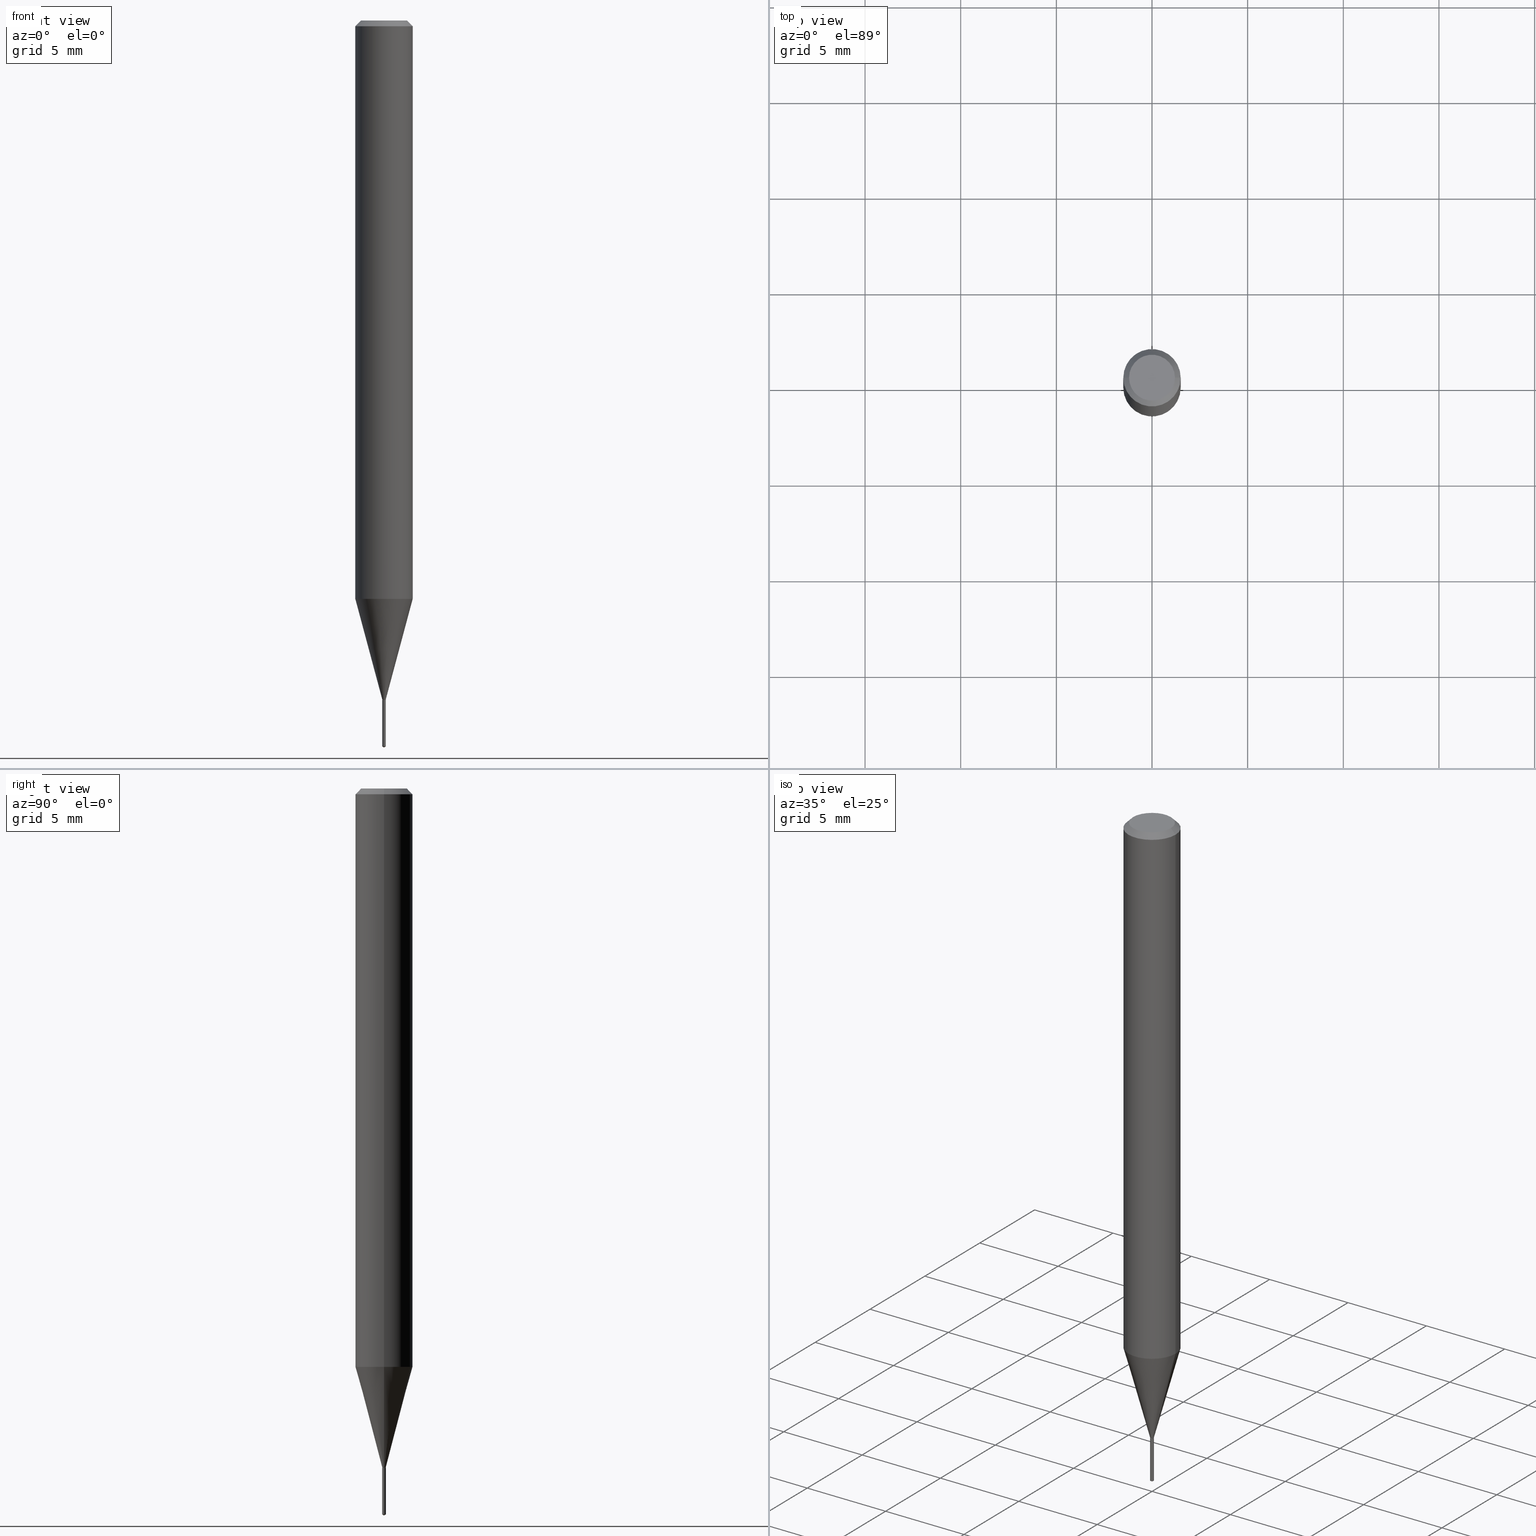
[diagram: canonical four-view strip — front | top / right | iso, engineering-drawing reading convention]
A machine part, canonical four-view strip (front | top / right | iso — engineering-drawing reading convention). The complete STEP part file that produces these views, byte-faithful:
ISO-10303-21;
HEADER;
FILE_DESCRIPTION (( 'STEP AP203' ),
    '1' );
FILE_NAME ('08243.STEP',
    '2024-04-24T13:54:42',
    ( '' ),
    ( '' ),
    'SwSTEP 2.0',
    'SolidWorks 2023',
    '' );
FILE_SCHEMA (( 'CONFIG_CONTROL_DESIGN' ));
ENDSEC;

DATA;
#1 = CARTESIAN_POINT ( 'NONE',  ( 0.000000000000000000, 0.000000000000000000, 0.000000000000000000 ) ) ;
#2 = CIRCLE ( 'NONE', #77, 0.003250000000000000284 ) ;
#3 = DIRECTION ( 'NONE',  ( -2.438391634766764879E-29, 3.501616251121835716E-15, 1.000000000000000000 ) ) ;
#4 = VERTEX_POINT ( 'NONE', #389 ) ;
#5 = EDGE_CURVE ( 'NONE', #287, #238, #356, .T. ) ;
#6 = CARTESIAN_POINT ( 'NONE',  ( 0.000000000000000000, 0.000000000000000000, 0.000000000000000000 ) ) ;
#7 = ORIENTED_EDGE ( 'NONE', *, *, #191, .F. ) ;
#8 = PRODUCT_RELATED_PRODUCT_CATEGORY ( 'detail', '', ( #393 ) ) ;
#9 = CIRCLE ( 'NONE', #399, 0.05905000000000014404 ) ;
#10 = EDGE_LOOP ( 'NONE', ( #240, #210, #245, #369 ) ) ;
#11 = EDGE_CURVE ( 'NONE', #464, #402, #2, .T. ) ;
#12 = ORIENTED_EDGE ( 'NONE', *, *, #274, .T. ) ;
#13 = FACE_OUTER_BOUND ( 'NONE', #106, .T. ) ;
#14 = VERTEX_POINT ( 'NONE', #37 ) ;
#15 = AXIS2_PLACEMENT_3D ( 'NONE', #58, #178, #484 ) ;
#16 = CIRCLE ( 'NONE', #87, 0.003749999999999999861 ) ;
#17 = FACE_OUTER_BOUND ( 'NONE', #280, .T. ) ;
#18 = ORIENTED_EDGE ( 'NONE', *, *, #247, .T. ) ;
#19 = EDGE_CURVE ( 'NONE', #238, #4, #308, .T. ) ;
#20 = CARTESIAN_POINT ( 'NONE',  ( 2.664535259104030551E-17, 0.003749999999995120084, -1.397699999999999942 ) ) ;
#21 = CARTESIAN_POINT ( 'NONE',  ( 3.418031750404965246E-29, -4.880043467301064347E-15, -1.397699999999999942 ) ) ;
#22 = PLANE ( 'NONE',  #186 ) ;
#23 = ORIENTED_EDGE ( 'NONE', *, *, #147, .F. ) ;
#24 = CIRCLE ( 'NONE', #349, 0.04724000000000000421 ) ;
#25 = APPROVAL_PERSON_ORGANIZATION ( #342, #231, #459 ) ;
#26 = DIRECTION ( 'NONE',  ( 1.000000000000000000, -6.982962677686138915E-15, 0.000000000000000000 ) ) ;
#27 = ADVANCED_FACE ( 'NONE', ( #135 ), #217, .T. ) ;
#28 = DIRECTION ( 'NONE',  ( 2.445468806185136597E-29, -3.491481338843145583E-15, -1.000000000000000000 ) ) ;
#29 = ORIENTED_EDGE ( 'NONE', *, *, #303, .T. ) ;
#30 = LINE ( 'NONE', #406, #78 ) ;
#31 = LINE ( 'NONE', #190, #248 ) ;
#32 = PERSON_AND_ORGANIZATION ( #130, #385 ) ;
#33 = AXIS2_PLACEMENT_3D ( 'NONE', #123, #278, #351 ) ;
#34 = SECURITY_CLASSIFICATION ( '', '', #205 ) ;
#35 = EDGE_CURVE ( 'NONE', #167, #176, #24, .T. ) ;
#36 = CALENDAR_DATE ( 2024, 24, 4 ) ;
#37 = CARTESIAN_POINT ( 'NONE',  ( 0.003749999999999999861, -4.904483836672966186E-15, -1.397199999999999998 ) ) ;
#38 = DATE_AND_TIME ( #36, #376 ) ;
#39 = CIRCLE ( 'NONE', #241, 0.003749999999999999861 ) ;
#40 = CIRCLE ( 'NONE', #69, 0.04724000000000000421 ) ;
#41 = CARTESIAN_POINT ( 'NONE',  ( 2.664535259103793893E-17, 0.003749999999995120518, -1.397699999999999942 ) ) ;
#42 = CALENDAR_DATE ( 2024, 24, 4 ) ;
#43 = DIRECTION ( 'NONE',  ( 0.7071067811865453523, -7.319954787623248157E-15, -0.7071067811865496822 ) ) ;
#44 = APPROVAL_ROLE ( '' ) ;
#45 = DIRECTION ( 'NONE',  ( 1.000000000000000000, -6.982962677686257244E-15, 0.000000000000000000 ) ) ;
#46 = DIRECTION ( 'NONE',  ( -6.982962677686265922E-15, -1.000000000000000000, 0.000000000000000000 ) ) ;
#47 = ADVANCED_FACE ( 'NONE', ( #200 ), #162, .T. ) ;
#48 = PERSON_AND_ORGANIZATION ( #130, #385 ) ;
#49 = AXIS2_PLACEMENT_3D ( 'NONE', #154, #28, #263 ) ;
#50 = ORIENTED_EDGE ( 'NONE', *, *, #360, .F. ) ;
#51 = VERTEX_POINT ( 'NONE', #315 ) ;
#52 = CARTESIAN_POINT ( 'NONE',  ( 3.415341734718161419E-29, -4.876202837828336250E-15, -1.396599999999999842 ) ) ;
#53 = ORIENTED_EDGE ( 'NONE', *, *, #124, .T. ) ;
#54 = CARTESIAN_POINT ( 'NONE',  ( 0.000000000000000000, 0.000000000000000000, 0.000000000000000000 ) ) ;
#55 = EDGE_LOOP ( 'NONE', ( #412, #471 ) ) ;
#56 = ADVANCED_FACE ( 'NONE', ( #396 ), #458, .F. ) ;
#57 = CONICAL_SURFACE ( 'NONE', #175, 0.003250000000000000284, 0.7853981633972759724 ) ;
#58 = CARTESIAN_POINT ( 'NONE',  ( 3.415341734718161419E-29, -4.876202837828336250E-15, -1.396599999999999842 ) ) ;
#59 = ORIENTED_EDGE ( 'NONE', *, *, #75, .T. ) ;
#60 = CC_DESIGN_DATE_AND_TIME_ASSIGNMENT ( #271, #72, ( #319 ) ) ;
#61 = CARTESIAN_POINT ( 'NONE',  ( -0.003250000000000000284, -4.854301601214750067E-15, -1.397700000000000164 ) ) ;
#62 = DIRECTION ( 'NONE',  ( -6.982962677686265922E-15, -1.000000000000000000, 0.000000000000000000 ) ) ;
#63 = ORIENTED_EDGE ( 'NONE', *, *, #64, .T. ) ;
#64 = EDGE_CURVE ( 'NONE', #4, #424, #391, .T. ) ;
#65 = DIRECTION ( 'NONE',  ( -1.000000000000000000, 6.982962677686265922E-15, -4.876176775795935793E-29 ) ) ;
#66 = LINE ( 'NONE', #234, #235 ) ;
#67 = ORIENTED_EDGE ( 'NONE', *, *, #476, .F. ) ;
#68 = AXIS2_PLACEMENT_3D ( 'NONE', #207, #93, #83 ) ;
#69 = AXIS2_PLACEMENT_3D ( 'NONE', #337, #146, #375 ) ;
#70 = CARTESIAN_POINT ( 'NONE',  ( 3.416809016001873005E-29, -4.878297726631642843E-15, -1.397199999999999998 ) ) ;
#71 = FACE_OUTER_BOUND ( 'NONE', #439, .T. ) ;
#72 = DATE_TIME_ROLE ( 'creation_date' ) ;
#73 = CYLINDRICAL_SURFACE ( 'NONE', #343, 0.003750000000000000729 ) ;
#74 = CALENDAR_DATE ( 2024, 24, 4 ) ;
#75 = EDGE_CURVE ( 'NONE', #167, #51, #282, .T. ) ;
#76 = DATE_AND_TIME ( #74, #203 ) ;
#77 = AXIS2_PLACEMENT_3D ( 'NONE', #324, #427, #164 ) ;
#78 = VECTOR ( 'NONE', #367, 39.37007874015748143 ) ;
#79 =( CONVERSION_BASED_UNIT ( 'INCH', #159 ) LENGTH_UNIT ( ) NAMED_UNIT ( #126 ) );
#80 = VERTEX_POINT ( 'NONE', #305 ) ;
#81 = PERSON_AND_ORGANIZATION_ROLE ( 'design_owner' ) ;
#82 = ADVANCED_FACE ( 'NONE', ( #377 ), #169, .T. ) ;
#83 = DIRECTION ( 'NONE',  ( -6.982962677686265133E-15, -1.000000000000000000, 3.468864327941532683E-15 ) ) ;
#84 = CALENDAR_DATE ( 2024, 24, 4 ) ;
#85 = VECTOR ( 'NONE', #298, 39.37007874015748854 ) ;
#86 =( GEOMETRIC_REPRESENTATION_CONTEXT ( 3 ) GLOBAL_UNCERTAINTY_ASSIGNED_CONTEXT ( ( #268 ) ) GLOBAL_UNIT_ASSIGNED_CONTEXT ( ( #79, #233, #426 ) ) REPRESENTATION_CONTEXT ( 'NONE', 'WORKASPACE' ) );
#87 = AXIS2_PLACEMENT_3D ( 'NONE', #488, #382, #256 ) ;
#88 = CARTESIAN_POINT ( 'NONE',  ( 0.05904999999999999832, -4.463468013801466955E-16, -0.01181000000000007218 ) ) ;
#89 = DIRECTION ( 'NONE',  ( -2.445468806185136597E-29, 3.491481338843145583E-15, 1.000000000000000000 ) ) ;
#90 = ORIENTED_EDGE ( 'NONE', *, *, #64, .F. ) ;
#91 = CARTESIAN_POINT ( 'NONE',  ( -0.003749999999999999861, -4.850604929638985175E-15, -1.396599999999999842 ) ) ;
#92 = MANIFOLD_SOLID_BREP ( 'Body-Move/Copy2[1]', #479 ) ;
#93 = DIRECTION ( 'NONE',  ( -2.438391634766764879E-29, 3.501616251121835716E-15, 1.000000000000000000 ) ) ;
#94 = ADVANCED_FACE ( 'NONE', ( #452 ), #57, .T. ) ;
#95 = SHAPE_DEFINITION_REPRESENTATION ( #397, #435 ) ;
#96 = ORIENTED_EDGE ( 'NONE', *, *, #134, .T. ) ;
#97 = AXIS2_PLACEMENT_3D ( 'NONE', #293, #142, #133 ) ;
#98 = AXIS2_PLACEMENT_3D ( 'NONE', #52, #129, #214 ) ;
#99 = ORIENTED_EDGE ( 'NONE', *, *, #486, .T. ) ;
#100 = CYLINDRICAL_SURFACE ( 'NONE', #350, 0.05905000000000006771 ) ;
#101 = ADVANCED_FACE ( 'NONE', ( #301 ), #73, .T. ) ;
#102 = ORIENTED_EDGE ( 'NONE', *, *, #157, .F. ) ;
#103 = DIRECTION ( 'NONE',  ( 0.2588190451025211281, 1.565188264969622954E-15, 0.9659258262890679791 ) ) ;
#104 = CC_DESIGN_PERSON_AND_ORGANIZATION_ASSIGNMENT ( #48, #283, ( #34 ) ) ;
#105 = DIRECTION ( 'NONE',  ( 1.000000000000000000, -6.982962677686257244E-15, 0.000000000000000000 ) ) ;
#106 = EDGE_LOOP ( 'NONE', ( #432, #204, #206, #264 ) ) ;
#107 = AXIS2_PLACEMENT_3D ( 'NONE', #1, #387, #386 ) ;
#108 = LINE ( 'NONE', #259, #446 ) ;
#109 = FACE_OUTER_BOUND ( 'NONE', #374, .T. ) ;
#110 = ORIENTED_EDGE ( 'NONE', *, *, #243, .F. ) ;
#111 = EDGE_CURVE ( 'NONE', #14, #152, #384, .T. ) ;
#112 = DIRECTION ( 'NONE',  ( 2.445468806185136597E-29, -3.491481338843145583E-15, -1.000000000000000000 ) ) ;
#113 = EDGE_LOOP ( 'NONE', ( #185, #59, #145, #302 ) ) ;
#114 = DIRECTION ( 'NONE',  ( -2.445468806185136597E-29, 3.491481338843145583E-15, 1.000000000000000000 ) ) ;
#115 = CARTESIAN_POINT ( 'NONE',  ( 3.418031750404965246E-29, -4.880043467301064347E-15, -1.397699999999999942 ) ) ;
#116 = VECTOR ( 'NONE', #153, 39.37007874015748143 ) ;
#117 = LOCAL_TIME ( 9, 54, 42.00000000000000000, #250 ) ;
#118 = COORDINATED_UNIVERSAL_TIME_OFFSET ( 5, 0, .BEHIND. ) ;
#119 = DIRECTION ( 'NONE',  ( -6.982962677686265922E-15, -1.000000000000000000, 0.000000000000000000 ) ) ;
#120 = CYLINDRICAL_SURFACE ( 'NONE', #291, 0.003749999999999999861 ) ;
#121 = CC_DESIGN_PERSON_AND_ORGANIZATION_ASSIGNMENT ( #32, #196, ( #161 ) ) ;
#122 = CIRCLE ( 'NONE', #276, 0.003749999999999999861 ) ;
#123 = CARTESIAN_POINT ( 'NONE',  ( -7.862219566584585859E-28, -1.223663185671330888E-13, -1.397700000000000164 ) ) ;
#124 = EDGE_CURVE ( 'NONE', #4, #238, #323, .T. ) ;
#125 = COORDINATED_UNIVERSAL_TIME_OFFSET ( 5, 0, .BEHIND. ) ;
#126 = DIMENSIONAL_EXPONENTS ( 1.000000000000000000, 0.000000000000000000, 0.000000000000000000, 0.000000000000000000, 0.000000000000000000, 0.000000000000000000, 0.000000000000000000 ) ;
#127 = ORIENTED_EDGE ( 'NONE', *, *, #19, .F. ) ;
#128 = ORIENTED_EDGE ( 'NONE', *, *, #438, .T. ) ;
#129 = DIRECTION ( 'NONE',  ( -2.445468806185136597E-29, 3.491481338843145583E-15, 1.000000000000000000 ) ) ;
#130 = PERSON ( 'UNSPECIFIED', 'UNSPECIFIED', 'UNSPECIFIED', ('UNSPECIFIED'), ('UNSPECIFIED'), ('UNSPECIFIED') ) ;
#131 = VECTOR ( 'NONE', #487, 39.37007874015748143 ) ;
#132 = VERTEX_POINT ( 'NONE', #188 ) ;
#133 = DIRECTION ( 'NONE',  ( 1.000000000000000000, -6.982962677686138915E-15, 0.000000000000000000 ) ) ;
#134 = EDGE_CURVE ( 'NONE', #80, #51, #66, .T. ) ;
#135 = FACE_OUTER_BOUND ( 'NONE', #228, .T. ) ;
#136 = ORIENTED_EDGE ( 'NONE', *, *, #19, .T. ) ;
#137 = DIRECTION ( 'NONE',  ( -2.445468806185136597E-29, 3.491481338843145583E-15, 1.000000000000000000 ) ) ;
#138 = AXIS2_PLACEMENT_3D ( 'NONE', #461, #246, #244 ) ;
#139 = ORIENTED_EDGE ( 'NONE', *, *, #438, .F. ) ;
#140 = CONICAL_SURFACE ( 'NONE', #359, 0.05904999999999999832, 0.7853981633974452814 ) ;
#141 = ADVANCED_FACE ( 'NONE', ( #444 ), #267, .F. ) ;
#142 = DIRECTION ( 'NONE',  ( -2.445468806185136597E-29, 3.491481338843145583E-15, 1.000000000000000000 ) ) ;
#143 = ORIENTED_EDGE ( 'NONE', *, *, #243, .T. ) ;
#144 = DIRECTION ( 'NONE',  ( 1.000000000000000000, -6.982962677686267499E-15, 4.876176775795936353E-29 ) ) ;
#145 = ORIENTED_EDGE ( 'NONE', *, *, #395, .T. ) ;
#146 = DIRECTION ( 'NONE',  ( -2.445468806185136597E-29, 3.491481338843145583E-15, 1.000000000000000000 ) ) ;
#147 = EDGE_CURVE ( 'NONE', #464, #152, #31, .T. ) ;
#148 = CARTESIAN_POINT ( 'NONE',  ( -0.003749999999999999861, -4.849557485237332272E-15, -1.396599999999999842 ) ) ;
#149 = VECTOR ( 'NONE', #103, 39.37007874015748854 ) ;
#150 = CYLINDRICAL_SURFACE ( 'NONE', #316, 0.003749999999999999861 ) ;
#151 = CARTESIAN_POINT ( 'NONE',  ( 3.418031750404965806E-29, -4.880043467301065136E-15, -1.397700000000000164 ) ) ;
#152 = VERTEX_POINT ( 'NONE', #477 ) ;
#153 = DIRECTION ( 'NONE',  ( 0.7071067811864256702, -2.468850131080980684E-15, 0.7071067811866693642 ) ) ;
#154 = CARTESIAN_POINT ( 'NONE',  ( 2.888098660104664204E-31, -4.123439461173780263E-17, -0.01181000000000007218 ) ) ;
#155 = CARTESIAN_POINT ( 'NONE',  ( 0.003749999999999999861, -4.902388947869659593E-15, -1.396599999999999842 ) ) ;
#156 = DIRECTION ( 'NONE',  ( -2.445468806185136597E-29, 3.491481338843145583E-15, 1.000000000000000000 ) ) ;
#157 = EDGE_CURVE ( 'NONE', #213, #327, #16, .T. ) ;
#158 = APPROVAL_ROLE ( '' ) ;
#159 = LENGTH_MEASURE_WITH_UNIT ( LENGTH_MEASURE( 0.02539999999999999897 ), #314 );
#160 = DIRECTION ( 'NONE',  ( 6.090539988449809201E-15, 0.8571673007021181068, 0.5150380749100444966 ) ) ;
#161 = PRODUCT_DEFINITION_FORMATION_WITH_SPECIFIED_SOURCE ( 'ANY', '', #393, .NOT_KNOWN. ) ;
#162 = CYLINDRICAL_SURFACE ( 'NONE', #138, 0.003750000000000000729 ) ;
#163 = MECHANICAL_CONTEXT ( 'NONE', #281, 'mechanical' ) ;
#164 = DIRECTION ( 'NONE',  ( 1.000000000000000000, -6.982962677686257244E-15, 0.000000000000000000 ) ) ;
#165 = PERSON_AND_ORGANIZATION_ROLE ( 'design_supplier' ) ;
#166 = CARTESIAN_POINT ( 'NONE',  ( -2.618611004128697467E-17, -0.003750000000005216175, -1.493846772678646628 ) ) ;
#167 = VERTEX_POINT ( 'NONE', #227 ) ;
#168 = ADVANCED_FACE ( 'NONE', ( #71 ), #194, .T. ) ;
#169 = CONICAL_SURFACE ( 'NONE', #49, 0.05904999999999999832, 0.7853981633974452814 ) ;
#170 = LOCAL_TIME ( 9, 54, 42.00000000000000000, #354 ) ;
#171 = ORIENTED_EDGE ( 'NONE', *, *, #328, .T. ) ;
#172 = CC_DESIGN_DATE_AND_TIME_ASSIGNMENT ( #211, #462, ( #34 ) ) ;
#173 = DIRECTION ( 'NONE',  ( 1.000000000000000000, -6.982962677686266711E-15, 4.876176775795936353E-29 ) ) ;
#174 = EDGE_CURVE ( 'NONE', #215, #424, #39, .T. ) ;
#175 = AXIS2_PLACEMENT_3D ( 'NONE', #151, #156, #105 ) ;
#176 = VERTEX_POINT ( 'NONE', #272 ) ;
#177 = CIRCLE ( 'NONE', #229, 0.003749999999999999861 ) ;
#178 = DIRECTION ( 'NONE',  ( -2.445468806185136597E-29, 3.491481338843145583E-15, 1.000000000000000000 ) ) ;
#179 = ORIENTED_EDGE ( 'NONE', *, *, #265, .T. ) ;
#180 = LINE ( 'NONE', #331, #379 ) ;
#181 = DIRECTION ( 'NONE',  ( 1.000000000000000000, -6.982962677686257244E-15, 0.000000000000000000 ) ) ;
#182 = ORIENTED_EDGE ( 'NONE', *, *, #448, .F. ) ;
#183 = DIRECTION ( 'NONE',  ( -2.445468806185136597E-29, 3.491481338843145583E-15, 1.000000000000000000 ) ) ;
#184 = ADVANCED_FACE ( 'NONE', ( #325 ), #326, .T. ) ;
#185 = ORIENTED_EDGE ( 'NONE', *, *, #35, .F. ) ;
#186 = AXIS2_PLACEMENT_3D ( 'NONE', #370, #300, #65 ) ;
#187 = LINE ( 'NONE', #155, #149 ) ;
#188 = CARTESIAN_POINT ( 'NONE',  ( -0.05904999999999999832, -1.678852964759526121E-15, -0.01181000000000007218 ) ) ;
#189 = FACE_OUTER_BOUND ( 'NONE', #113, .T. ) ;
#190 = CARTESIAN_POINT ( 'NONE',  ( -0.003250000000000000284, -4.856950828388862057E-15, -1.397700000000000164 ) ) ;
#191 = EDGE_CURVE ( 'NONE', #213, #253, #260, .T. ) ;
#192 = PERSON_AND_ORGANIZATION ( #130, #385 ) ;
#193 = CC_DESIGN_PERSON_AND_ORGANIZATION_ASSIGNMENT ( #347, #165, ( #161 ) ) ;
#194 = CONICAL_SURFACE ( 'NONE', #269, 65.52281426576959689, 1.029744258676662305 ) ;
#195 = CIRCLE ( 'NONE', #237, 0.05904999999999999832 ) ;
#196 = PERSON_AND_ORGANIZATION_ROLE ( 'creator' ) ;
#197 = PERSON_AND_ORGANIZATION_ROLE ( 'creator' ) ;
#198 = ADVANCED_FACE ( 'NONE', ( #109 ), #225, .T. ) ;
#199 = APPLICATION_PROTOCOL_DEFINITION ( 'international standard', 'config_control_design', 1994, #281 ) ;
#200 = FACE_OUTER_BOUND ( 'NONE', #404, .T. ) ;
#201 = AXIS2_PLACEMENT_3D ( 'NONE', #485, #289, #221 ) ;
#202 = FACE_OUTER_BOUND ( 'NONE', #285, .T. ) ;
#203 = LOCAL_TIME ( 9, 54, 42.00000000000000000, #311 ) ;
#204 = ORIENTED_EDGE ( 'NONE', *, *, #191, .T. ) ;
#205 = SECURITY_CLASSIFICATION_LEVEL ( 'unclassified' ) ;
#206 = ORIENTED_EDGE ( 'NONE', *, *, #274, .F. ) ;
#207 = CARTESIAN_POINT ( 'NONE',  ( -9.234170117284283212E-28, 1.326343050180702537E-13, 37.87397874015748300 ) ) ;
#208 = DIRECTION ( 'NONE',  ( -2.445468806185136597E-29, 3.491481338843145583E-15, 1.000000000000000000 ) ) ;
#209 = CIRCLE ( 'NONE', #309, 0.05904999999999999832 ) ;
#210 = ORIENTED_EDGE ( 'NONE', *, *, #448, .T. ) ;
#211 = DATE_AND_TIME ( #84, #170 ) ;
#212 = ADVANCED_FACE ( 'NONE', ( #13 ), #428, .T. ) ;
#213 = VERTEX_POINT ( 'NONE', #91 ) ;
#214 = DIRECTION ( 'NONE',  ( 1.000000000000000000, -6.982962677686138915E-15, 0.000000000000000000 ) ) ;
#215 = VERTEX_POINT ( 'NONE', #355 ) ;
#216 = CARTESIAN_POINT ( 'NONE',  ( 2.888098660104664204E-31, -4.123439461173780263E-17, -0.01181000000000007218 ) ) ;
#217 = CONICAL_SURFACE ( 'NONE', #68, 65.52281426576959689, 1.029744258676662305 ) ;
#218 = ORIENTED_EDGE ( 'NONE', *, *, #366, .T. ) ;
#219 = AXIS2_PLACEMENT_3D ( 'NONE', #403, #304, #481 ) ;
#220 = DIRECTION ( 'NONE',  ( 1.000000000000000000, -6.982962677686266711E-15, 0.000000000000000000 ) ) ;
#221 = DIRECTION ( 'NONE',  ( 6.982962677686265922E-15, 1.000000000000000000, -3.501616251121835322E-15 ) ) ;
#222 = ORIENTED_EDGE ( 'NONE', *, *, #147, .T. ) ;
#223 = EDGE_CURVE ( 'NONE', #327, #213, #284, .T. ) ;
#224 = CARTESIAN_POINT ( 'NONE',  ( -0.05905000000000013710, -3.736047020373655189E-15, -1.190217590341440701 ) ) ;
#225 = CYLINDRICAL_SURFACE ( 'NONE', #405, 0.05905000000000006771 ) ;
#226 = CARTESIAN_POINT ( 'NONE',  ( 2.888098660104664204E-31, -4.123439461173780263E-17, -0.01181000000000007218 ) ) ;
#227 = CARTESIAN_POINT ( 'NONE',  ( 0.04724000000000000421, -3.852183633974369345E-16, -3.380025165621689721E-19 ) ) ;
#228 = EDGE_LOOP ( 'NONE', ( #467, #409, #127 ) ) ;
#229 = AXIS2_PLACEMENT_3D ( 'NONE', #262, #340, #413 ) ;
#230 = CARTESIAN_POINT ( 'NONE',  ( 0.003749999999999999861, -2.618611004132350263E-17, 1.828566290923476097E-31 ) ) ;
#231 = APPROVAL ( #273, 'UNSPECIFIED' ) ;
#232 = CARTESIAN_POINT ( 'NONE',  ( -9.234170117284283212E-28, 1.326343050180702537E-13, 37.87397874015748300 ) ) ;
#233 =( NAMED_UNIT ( * ) PLANE_ANGLE_UNIT ( ) SI_UNIT ( $, .RADIAN. ) );
#234 = CARTESIAN_POINT ( 'NONE',  ( 0.05905000000000006771, -4.123439461173745257E-16, 2.879382386107503723E-30 ) ) ;
#235 = VECTOR ( 'NONE', #411, 39.37007874015748143 ) ;
#236 = ADVANCED_FACE ( 'NONE', ( #441 ), #100, .T. ) ;
#237 = AXIS2_PLACEMENT_3D ( 'NONE', #226, #297, #447 ) ;
#238 = VERTEX_POINT ( 'NONE', #166 ) ;
#239 = CARTESIAN_POINT ( 'NONE',  ( -0.05905000000000006771, 4.195754854663396409E-16, -2.904631170795525045E-30 ) ) ;
#240 = ORIENTED_EDGE ( 'NONE', *, *, #111, .T. ) ;
#241 = AXIS2_PLACEMENT_3D ( 'NONE', #21, #454, #119 ) ;
#242 = APPROVAL_DATE_TIME ( #398, #339 ) ;
#243 = EDGE_CURVE ( 'NONE', #402, #464, #270, .T. ) ;
#244 = DIRECTION ( 'NONE',  ( -6.982962677686265922E-15, -1.000000000000000000, 0.000000000000000000 ) ) ;
#245 = ORIENTED_EDGE ( 'NONE', *, *, #223, .F. ) ;
#246 = DIRECTION ( 'NONE',  ( -2.438391634766764879E-29, 3.501616251121835716E-15, 1.000000000000000000 ) ) ;
#247 = EDGE_CURVE ( 'NONE', #152, #14, #122, .T. ) ;
#248 = VECTOR ( 'NONE', #415, 39.37007874015748143 ) ;
#249 = EDGE_LOOP ( 'NONE', ( #23, #436, #171, #450 ) ) ;
#250 = COORDINATED_UNIVERSAL_TIME_OFFSET ( 5, 0, .BEHIND. ) ;
#251 = ORIENTED_EDGE ( 'NONE', *, *, #157, .T. ) ;
#252 = CARTESIAN_POINT ( 'NONE',  ( 0.003749999999999999861, -4.902388947869659593E-15, -1.396599999999999842 ) ) ;
#253 = VERTEX_POINT ( 'NONE', #224 ) ;
#254 = DIRECTION ( 'NONE',  ( -2.445468806185136597E-29, 3.491481338843145583E-15, 1.000000000000000000 ) ) ;
#255 = VECTOR ( 'NONE', #394, 39.37007874015748143 ) ;
#256 = DIRECTION ( 'NONE',  ( 1.000000000000000000, -6.982962677686138915E-15, 0.000000000000000000 ) ) ;
#257 = CC_DESIGN_APPROVAL ( #440, ( #161 ) ) ;
#258 = EDGE_CURVE ( 'NONE', #327, #80, #187, .T. ) ;
#259 = CARTESIAN_POINT ( 'NONE',  ( -0.003749999999999999861, 2.664535259100375598E-17, -1.844600658845589633E-31 ) ) ;
#260 = LINE ( 'NONE', #148, #85 ) ;
#261 = ORIENTED_EDGE ( 'NONE', *, *, #5, .T. ) ;
#262 = CARTESIAN_POINT ( 'NONE',  ( 3.418031750404965246E-29, -4.880043467301064347E-15, -1.397699999999999942 ) ) ;
#263 = DIRECTION ( 'NONE',  ( -1.000000000000000000, 6.982962677686266711E-15, 0.000000000000000000 ) ) ;
#264 = ORIENTED_EDGE ( 'NONE', *, *, #258, .F. ) ;
#265 = EDGE_CURVE ( 'NONE', #176, #167, #40, .T. ) ;
#266 = CARTESIAN_POINT ( 'NONE',  ( 3.648077724774556569E-29, -5.238768073303377996E-15, -1.496099999999999985 ) ) ;
#267 = PLANE ( 'NONE',  #201 ) ;
#268 = UNCERTAINTY_MEASURE_WITH_UNIT (LENGTH_MEASURE( 1.000000000000000082E-05 ), #79, 'distance_accuracy_value', 'NONE');
#269 = AXIS2_PLACEMENT_3D ( 'NONE', #232, #381, #307 ) ;
#270 = CIRCLE ( 'NONE', #390, 0.003250000000000000284 ) ;
#271 = DATE_AND_TIME ( #417, #463 ) ;
#272 = CARTESIAN_POINT ( 'NONE',  ( -0.04724000000000000421, 3.504923541997677355E-16, -3.380025165670481712E-19 ) ) ;
#273 = APPROVAL_STATUS ( 'not_yet_approved' ) ;
#274 = EDGE_CURVE ( 'NONE', #80, #253, #9, .T. ) ;
#275 = VECTOR ( 'NONE', #392, 39.37007874015748143 ) ;
#276 = AXIS2_PLACEMENT_3D ( 'NONE', #70, #114, #26 ) ;
#277 = CARTESIAN_POINT ( 'NONE',  ( 3.668034727918996305E-29, -5.210436939519526986E-15, -1.496099999999999985 ) ) ;
#278 = DIRECTION ( 'NONE',  ( -2.438088387897960049E-29, 3.491481338843145188E-15, 1.000000000000000000 ) ) ;
#279 = DIRECTION ( 'NONE',  ( 1.000000000000000000, -6.982962677686267499E-15, 4.876176775795936353E-29 ) ) ;
#280 = EDGE_LOOP ( 'NONE', ( #7, #251, #294, #50 ) ) ;
#281 = APPLICATION_CONTEXT ( 'configuration controlled 3d designs of mechanical parts and assemblies' ) ;
#282 = LINE ( 'NONE', #88, #290 ) ;
#283 = PERSON_AND_ORGANIZATION_ROLE ( 'classification_officer' ) ;
#284 = CIRCLE ( 'NONE', #97, 0.003749999999999999861 ) ;
#285 = EDGE_LOOP ( 'NONE', ( #182, #18, #218, #102 ) ) ;
#286 = APPROVAL_STATUS ( 'not_yet_approved' ) ;
#287 = VERTEX_POINT ( 'NONE', #266 ) ;
#288 = ORIENTED_EDGE ( 'NONE', *, *, #431, .T. ) ;
#289 = DIRECTION ( 'NONE',  ( 2.438391634766764879E-29, -3.501616251121835322E-15, -1.000000000000000000 ) ) ;
#290 = VECTOR ( 'NONE', #43, 39.37007874015748143 ) ;
#291 = AXIS2_PLACEMENT_3D ( 'NONE', #423, #312, #279 ) ;
#292 = ORIENTED_EDGE ( 'NONE', *, *, #35, .T. ) ;
#293 = CARTESIAN_POINT ( 'NONE',  ( 3.415341734718161419E-29, -4.876202837828336250E-15, -1.396599999999999842 ) ) ;
#294 = ORIENTED_EDGE ( 'NONE', *, *, #258, .T. ) ;
#295 = FACE_OUTER_BOUND ( 'NONE', #10, .T. ) ;
#296 = ORIENTED_EDGE ( 'NONE', *, *, #174, .F. ) ;
#297 = DIRECTION ( 'NONE',  ( -2.445468806185136597E-29, 3.491481338843145583E-15, 1.000000000000000000 ) ) ;
#298 = DIRECTION ( 'NONE',  ( -0.2588190451025211281, 5.211531920934547886E-15, 0.9659258262890679791 ) ) ;
#299 = AXIS2_PLACEMENT_3D ( 'NONE', #469, #137, #181 ) ;
#300 = DIRECTION ( 'NONE',  ( 2.438088387897960049E-29, -3.491481338843145188E-15, -1.000000000000000000 ) ) ;
#301 = FACE_OUTER_BOUND ( 'NONE', #473, .T. ) ;
#302 = ORIENTED_EDGE ( 'NONE', *, *, #431, .F. ) ;
#303 = EDGE_CURVE ( 'NONE', #238, #215, #30, .T. ) ;
#304 = DIRECTION ( 'NONE',  ( -2.445468806185136597E-29, 3.491481338843145583E-15, 1.000000000000000000 ) ) ;
#305 = CARTESIAN_POINT ( 'NONE',  ( 0.05905000000000013710, -4.567966451957370391E-15, -1.190217590341440701 ) ) ;
#306 = CARTESIAN_POINT ( 'NONE',  ( 2.910639989752832993E-29, -4.155622505839995471E-15, -1.190217590341440701 ) ) ;
#307 = DIRECTION ( 'NONE',  ( -6.982962677686265133E-15, -1.000000000000000000, 3.468864327941532683E-15 ) ) ;
#308 = CIRCLE ( 'NONE', #490, 0.003750000000000001162 ) ;
#309 = AXIS2_PLACEMENT_3D ( 'NONE', #216, #254, #220 ) ;
#310 = APPLICATION_CONTEXT ( 'configuration controlled 3d designs of mechanical parts and assemblies' ) ;
#311 = COORDINATED_UNIVERSAL_TIME_OFFSET ( 5, 0, .BEHIND. ) ;
#312 = DIRECTION ( 'NONE',  ( -2.445468806185136597E-29, 3.491481338843145583E-15, 1.000000000000000000 ) ) ;
#313 = ADVANCED_FACE ( 'NONE', ( #17 ), #421, .T. ) ;
#314 =( LENGTH_UNIT ( ) NAMED_UNIT ( * ) SI_UNIT ( $, .METRE. ) );
#315 = CARTESIAN_POINT ( 'NONE',  ( 0.05904999999999999832, -4.535783407291118600E-16, -0.01181000000000007218 ) ) ;
#316 = AXIS2_PLACEMENT_3D ( 'NONE', #54, #183, #144 ) ;
#317 = APPLICATION_PROTOCOL_DEFINITION ( 'international standard', 'config_control_design', 1994, #310 ) ;
#318 = ORIENTED_EDGE ( 'NONE', *, *, #134, .F. ) ;
#319 = PRODUCT_DEFINITION ( 'UNKNOWN', '', #161, #474 ) ;
#320 = PERSON_AND_ORGANIZATION ( #130, #385 ) ;
#321 = DIRECTION ( 'NONE',  ( -2.445468806185136597E-29, 3.491481338843145583E-15, 1.000000000000000000 ) ) ;
#322 = DIRECTION ( 'NONE',  ( 1.000000000000000000, -6.982962677686266711E-15, 4.876185090822587894E-29 ) ) ;
#323 = CIRCLE ( 'NONE', #457, 0.003750000000000001162 ) ;
#324 = CARTESIAN_POINT ( 'NONE',  ( 3.418031750404965806E-29, -4.880043467301065136E-15, -1.397700000000000164 ) ) ;
#325 = FACE_OUTER_BOUND ( 'NONE', #249, .T. ) ;
#326 = CONICAL_SURFACE ( 'NONE', #299, 0.003250000000000000284, 0.7853981633972759724 ) ;
#327 = VERTEX_POINT ( 'NONE', #252 ) ;
#328 = EDGE_CURVE ( 'NONE', #402, #14, #443, .T. ) ;
#329 = CARTESIAN_POINT ( 'NONE',  ( 0.003250000000000000284, -4.902738096003545471E-15, -1.397700000000000164 ) ) ;
#330 = ORIENTED_EDGE ( 'NONE', *, *, #348, .F. ) ;
#331 = CARTESIAN_POINT ( 'NONE',  ( -0.05904999999999999832, 3.711095515056362547E-16, -0.01181000000000007218 ) ) ;
#332 = ORIENTED_EDGE ( 'NONE', *, *, #11, .F. ) ;
#333 = CARTESIAN_POINT ( 'NONE',  ( 2.888098660104664204E-31, -4.123439461173780263E-17, -0.01181000000000007218 ) ) ;
#334 = AXIS2_PLACEMENT_3D ( 'NONE', #373, #341, #371 ) ;
#335 = ORIENTED_EDGE ( 'NONE', *, *, #328, .F. ) ;
#336 = VECTOR ( 'NONE', #346, 39.37007874015748143 ) ;
#337 = CARTESIAN_POINT ( 'NONE',  ( 8.265746106709734507E-48, -1.180129479067563789E-33, -3.380025165646692144E-19 ) ) ;
#338 = DIRECTION ( 'NONE',  ( -2.438391634766764879E-29, 3.501616251121835716E-15, 1.000000000000000000 ) ) ;
#339 = APPROVAL ( #286, 'UNSPECIFIED' ) ;
#340 = DIRECTION ( 'NONE',  ( -2.438391634766764879E-29, 3.501616251121835716E-15, 1.000000000000000000 ) ) ;
#341 = DIRECTION ( 'NONE',  ( -2.445468806185136597E-29, 3.491481338843145583E-15, 1.000000000000000000 ) ) ;
#342 = PERSON_AND_ORGANIZATION ( #130, #385 ) ;
#343 = AXIS2_PLACEMENT_3D ( 'NONE', #115, #408, #449 ) ;
#344 = CIRCLE ( 'NONE', #219, 0.05905000000000014404 ) ;
#345 = ADVANCED_FACE ( 'NONE', ( #189 ), #140, .T. ) ;
#346 = DIRECTION ( 'NONE',  ( -2.445468806185136877E-29, 3.491481338843145188E-15, 1.000000000000000000 ) ) ;
#347 = PERSON_AND_ORGANIZATION ( #130, #385 ) ;
#348 = EDGE_CURVE ( 'NONE', #424, #215, #177, .T. ) ;
#349 = AXIS2_PLACEMENT_3D ( 'NONE', #429, #321, #322 ) ;
#350 = AXIS2_PLACEMENT_3D ( 'NONE', #6, #208, #361 ) ;
#351 = DIRECTION ( 'NONE',  ( 1.000000000000000000, -6.982962677686265922E-15, 4.876176775795935793E-29 ) ) ;
#352 = LINE ( 'NONE', #239, #336 ) ;
#353 = CARTESIAN_POINT ( 'NONE',  ( 3.648077724774556569E-29, -5.238768073303377996E-15, -1.496099999999999985 ) ) ;
#354 = COORDINATED_UNIVERSAL_TIME_OFFSET ( 5, 0, .BEHIND. ) ;
#355 = CARTESIAN_POINT ( 'NONE',  ( -2.618611004128931660E-17, -0.003750000000004880072, -1.397699999999999942 ) ) ;
#356 = LINE ( 'NONE', #353, #255 ) ;
#357 = CARTESIAN_POINT ( 'NONE',  ( 0.000000000000000000, 0.000000000000000000, 0.000000000000000000 ) ) ;
#358 = ORIENTED_EDGE ( 'NONE', *, *, #395, .F. ) ;
#359 = AXIS2_PLACEMENT_3D ( 'NONE', #333, #112, #472 ) ;
#360 = EDGE_CURVE ( 'NONE', #253, #80, #344, .T. ) ;
#361 = DIRECTION ( 'NONE',  ( 1.000000000000000000, -6.982962677686266711E-15, 4.876176775795936353E-29 ) ) ;
#362 = ORIENTED_EDGE ( 'NONE', *, *, #303, .F. ) ;
#363 = PERSON_AND_ORGANIZATION ( #130, #385 ) ;
#364 = EDGE_LOOP ( 'NONE', ( #143, #222, #400, #335 ) ) ;
#365 = ORIENTED_EDGE ( 'NONE', *, *, #265, .F. ) ;
#366 = EDGE_CURVE ( 'NONE', #14, #327, #451, .T. ) ;
#367 = DIRECTION ( 'NONE',  ( -2.438391634766764879E-29, 3.501616251121835322E-15, 1.000000000000000000 ) ) ;
#368 = CC_DESIGN_APPROVAL ( #339, ( #34 ) ) ;
#369 = ORIENTED_EDGE ( 'NONE', *, *, #366, .F. ) ;
#370 = CARTESIAN_POINT ( 'NONE',  ( 4.132873053354867254E-48, -5.900647395337818946E-34, -1.690012582823346072E-19 ) ) ;
#371 = DIRECTION ( 'NONE',  ( 1.000000000000000000, -6.982962677686138915E-15, 0.000000000000000000 ) ) ;
#372 = CARTESIAN_POINT ( 'NONE',  ( 0.003250000000000000284, -4.902738096003545471E-15, -1.397700000000000164 ) ) ;
#373 = CARTESIAN_POINT ( 'NONE',  ( 3.416809016001873005E-29, -4.878297726631642843E-15, -1.397199999999999998 ) ) ;
#374 = EDGE_LOOP ( 'NONE', ( #442, #445, #96, #139 ) ) ;
#375 = DIRECTION ( 'NONE',  ( 1.000000000000000000, -6.982962677686266711E-15, 4.876185090822587894E-29 ) ) ;
#376 = LOCAL_TIME ( 9, 54, 42.00000000000000000, #125 ) ;
#377 = FACE_OUTER_BOUND ( 'NONE', #433, .T. ) ;
#378 = EDGE_LOOP ( 'NONE', ( #110, #332 ) ) ;
#379 = VECTOR ( 'NONE', #475, 39.37007874015748143 ) ;
#380 = DIRECTION ( 'NONE',  ( -2.445468806185136597E-29, 3.491481338843145583E-15, 1.000000000000000000 ) ) ;
#381 = DIRECTION ( 'NONE',  ( -2.438391634766764879E-29, 3.501616251121835716E-15, 1.000000000000000000 ) ) ;
#382 = DIRECTION ( 'NONE',  ( -2.445468806185136597E-29, 3.491481338843145583E-15, 1.000000000000000000 ) ) ;
#383 = APPROVAL_DATE_TIME ( #76, #440 ) ;
#384 = CIRCLE ( 'NONE', #334, 0.003749999999999999861 ) ;
#385 = ORGANIZATION ( 'UNSPECIFIED', 'UNSPECIFIED', '' ) ;
#386 = DIRECTION ( 'NONE',  ( 1.000000000000000000, 0.000000000000000000, 0.000000000000000000 ) ) ;
#387 = DIRECTION ( 'NONE',  ( 0.000000000000000000, 0.000000000000000000, 1.000000000000000000 ) ) ;
#388 = ADVANCED_FACE ( 'NONE', ( #295 ), #150, .T. ) ;
#389 = CARTESIAN_POINT ( 'NONE',  ( 2.664535259104027778E-17, 0.003749999999994783548, -1.493846772678646628 ) ) ;
#390 = AXIS2_PLACEMENT_3D ( 'NONE', #434, #89, #45 ) ;
#391 = LINE ( 'NONE', #41, #275 ) ;
#392 = DIRECTION ( 'NONE',  ( -2.438391634766764879E-29, 3.501616251121835322E-15, 1.000000000000000000 ) ) ;
#393 = PRODUCT ( '08243', '08243', '', ( #163 ) ) ;
#394 = DIRECTION ( 'NONE',  ( -5.985567269335970467E-15, -0.8571673007021145541, 0.5150380749100504918 ) ) ;
#395 = EDGE_CURVE ( 'NONE', #51, #132, #209, .T. ) ;
#396 = FACE_OUTER_BOUND ( 'NONE', #378, .T. ) ;
#397 = PRODUCT_DEFINITION_SHAPE ( 'NONE', 'NONE',  #319 ) ;
#398 = DATE_AND_TIME ( #42, #117 ) ;
#399 = AXIS2_PLACEMENT_3D ( 'NONE', #306, #380, #453 ) ;
#400 = ORIENTED_EDGE ( 'NONE', *, *, #111, .F. ) ;
#401 = CC_DESIGN_PERSON_AND_ORGANIZATION_ASSIGNMENT ( #420, #81, ( #393 ) ) ;
#402 = VERTEX_POINT ( 'NONE', #372 ) ;
#403 = CARTESIAN_POINT ( 'NONE',  ( 2.910639989752832993E-29, -4.155622505839995471E-15, -1.190217590341440701 ) ) ;
#404 = EDGE_LOOP ( 'NONE', ( #90, #53, #29, #330 ) ) ;
#405 = AXIS2_PLACEMENT_3D ( 'NONE', #357, #465, #173 ) ;
#406 = CARTESIAN_POINT ( 'NONE',  ( -2.618611004128931968E-17, -0.003750000000004880506, -1.397699999999999942 ) ) ;
#407 = DIRECTION ( 'NONE',  ( -2.445468806185136877E-29, 3.491481338843145188E-15, 1.000000000000000000 ) ) ;
#408 = DIRECTION ( 'NONE',  ( -2.438391634766764879E-29, 3.501616251121835716E-15, 1.000000000000000000 ) ) ;
#409 = ORIENTED_EDGE ( 'NONE', *, *, #476, .T. ) ;
#410 = FACE_OUTER_BOUND ( 'NONE', #470, .T. ) ;
#411 = DIRECTION ( 'NONE',  ( -2.445468806185136877E-29, 3.491481338843145188E-15, 1.000000000000000000 ) ) ;
#412 = ORIENTED_EDGE ( 'NONE', *, *, #174, .T. ) ;
#413 = DIRECTION ( 'NONE',  ( -6.982962677686265922E-15, -1.000000000000000000, 0.000000000000000000 ) ) ;
#414 = CC_DESIGN_APPROVAL ( #231, ( #319 ) ) ;
#415 = DIRECTION ( 'NONE',  ( -0.7071067811864256702, 7.493145998869913976E-15, 0.7071067811866693642 ) ) ;
#416 = APPROVAL_PERSON_ORGANIZATION ( #363, #339, #44 ) ;
#417 = CALENDAR_DATE ( 2024, 24, 4 ) ;
#418 = CARTESIAN_POINT ( 'NONE',  ( 3.652475236614399105E-29, -5.216712569005531029E-15, -1.493846772678646628 ) ) ;
#419 = MANIFOLD_SOLID_BREP ( 'Body-Move/Copy2[2]', #430 ) ;
#420 = PERSON_AND_ORGANIZATION ( #130, #385 ) ;
#421 = CONICAL_SURFACE ( 'NONE', #15, 0.003749999999999999861, 0.2617993877991498519 ) ;
#422 = ADVANCED_FACE ( 'NONE', ( #410 ), #22, .F. ) ;
#423 = CARTESIAN_POINT ( 'NONE',  ( 0.000000000000000000, 0.000000000000000000, 0.000000000000000000 ) ) ;
#424 = VERTEX_POINT ( 'NONE', #20 ) ;
#425 = CC_DESIGN_PERSON_AND_ORGANIZATION_ASSIGNMENT ( #320, #197, ( #319 ) ) ;
#426 =( NAMED_UNIT ( * ) SI_UNIT ( $, .STERADIAN. ) SOLID_ANGLE_UNIT ( ) );
#427 = DIRECTION ( 'NONE',  ( -2.445468806185136597E-29, 3.491481338843145583E-15, 1.000000000000000000 ) ) ;
#428 = CONICAL_SURFACE ( 'NONE', #98, 0.003749999999999999861, 0.2617993877991498519 ) ;
#429 = CARTESIAN_POINT ( 'NONE',  ( 8.265746106709734507E-48, -1.180129479067563789E-33, -3.380025165646692144E-19 ) ) ;
#430 = CLOSED_SHELL ( 'NONE', ( #94, #345, #236, #212, #388, #468, #313, #198, #82, #422, #56, #184 ) ) ;
#431 = EDGE_CURVE ( 'NONE', #176, #132, #180, .T. ) ;
#432 = ORIENTED_EDGE ( 'NONE', *, *, #223, .T. ) ;
#433 = EDGE_LOOP ( 'NONE', ( #460, #365, #288, #128 ) ) ;
#434 = CARTESIAN_POINT ( 'NONE',  ( 3.418031750404965806E-29, -4.880043467301065136E-15, -1.397700000000000164 ) ) ;
#435 = ADVANCED_BREP_SHAPE_REPRESENTATION ( '08243', ( #92, #419, #107 ), #86 ) ;
#436 = ORIENTED_EDGE ( 'NONE', *, *, #11, .T. ) ;
#437 = APPROVAL_PERSON_ORGANIZATION ( #192, #440, #158 ) ;
#438 = EDGE_CURVE ( 'NONE', #132, #51, #195, .T. ) ;
#439 = EDGE_LOOP ( 'NONE', ( #67, #261, #483 ) ) ;
#440 = APPROVAL ( #489, 'UNSPECIFIED' ) ;
#441 = FACE_OUTER_BOUND ( 'NONE', #478, .T. ) ;
#442 = ORIENTED_EDGE ( 'NONE', *, *, #486, .F. ) ;
#443 = LINE ( 'NONE', #329, #116 ) ;
#444 = FACE_OUTER_BOUND ( 'NONE', #55, .T. ) ;
#445 = ORIENTED_EDGE ( 'NONE', *, *, #360, .T. ) ;
#446 = VECTOR ( 'NONE', #407, 39.37007874015748143 ) ;
#447 = DIRECTION ( 'NONE',  ( 1.000000000000000000, -6.982962677686266711E-15, 0.000000000000000000 ) ) ;
#448 = EDGE_CURVE ( 'NONE', #152, #213, #108, .T. ) ;
#449 = DIRECTION ( 'NONE',  ( -6.982962677686265922E-15, -1.000000000000000000, 0.000000000000000000 ) ) ;
#450 = ORIENTED_EDGE ( 'NONE', *, *, #247, .F. ) ;
#451 = LINE ( 'NONE', #230, #131 ) ;
#452 = FACE_OUTER_BOUND ( 'NONE', #364, .T. ) ;
#453 = DIRECTION ( 'NONE',  ( 1.000000000000000000, -6.982962677686263555E-15, 0.000000000000000000 ) ) ;
#454 = DIRECTION ( 'NONE',  ( -2.438391634766764879E-29, 3.501616251121835716E-15, 1.000000000000000000 ) ) ;
#455 = APPROVAL_DATE_TIME ( #38, #231 ) ;
#456 = LINE ( 'NONE', #277, #480 ) ;
#457 = AXIS2_PLACEMENT_3D ( 'NONE', #418, #338, #62 ) ;
#458 = PLANE ( 'NONE',  #33 ) ;
#459 = APPROVAL_ROLE ( '' ) ;
#460 = ORIENTED_EDGE ( 'NONE', *, *, #75, .F. ) ;
#461 = CARTESIAN_POINT ( 'NONE',  ( 3.418031750404965246E-29, -4.880043467301064347E-15, -1.397699999999999942 ) ) ;
#462 = DATE_TIME_ROLE ( 'classification_date' ) ;
#463 = LOCAL_TIME ( 9, 54, 42.00000000000000000, #118 ) ;
#464 = VERTEX_POINT ( 'NONE', #61 ) ;
#465 = DIRECTION ( 'NONE',  ( -2.445468806185136597E-29, 3.491481338843145583E-15, 1.000000000000000000 ) ) ;
#466 = CARTESIAN_POINT ( 'NONE',  ( 3.652475236614399105E-29, -5.216712569005531029E-15, -1.493846772678646628 ) ) ;
#467 = ORIENTED_EDGE ( 'NONE', *, *, #5, .F. ) ;
#468 = ADVANCED_FACE ( 'NONE', ( #202 ), #120, .T. ) ;
#469 = CARTESIAN_POINT ( 'NONE',  ( 3.418031750404965806E-29, -4.880043467301065136E-15, -1.397700000000000164 ) ) ;
#470 = EDGE_LOOP ( 'NONE', ( #179, #292 ) ) ;
#471 = ORIENTED_EDGE ( 'NONE', *, *, #348, .T. ) ;
#472 = DIRECTION ( 'NONE',  ( -1.000000000000000000, 6.982962677686266711E-15, 0.000000000000000000 ) ) ;
#473 = EDGE_LOOP ( 'NONE', ( #136, #63, #296, #362 ) ) ;
#474 = DESIGN_CONTEXT ( 'detailed design', #310, 'design' ) ;
#475 = DIRECTION ( 'NONE',  ( -0.7071067811865453523, 2.468850131082234184E-15, -0.7071067811865496822 ) ) ;
#476 = EDGE_CURVE ( 'NONE', #287, #4, #456, .T. ) ;
#477 = CARTESIAN_POINT ( 'NONE',  ( -0.003749999999999999861, -4.850604929638985175E-15, -1.397199999999999998 ) ) ;
#478 = EDGE_LOOP ( 'NONE', ( #12, #99, #358, #318 ) ) ;
#479 = CLOSED_SHELL ( 'NONE', ( #101, #27, #168, #47, #141 ) ) ;
#480 = VECTOR ( 'NONE', #160, 39.37007874015748143 ) ;
#481 = DIRECTION ( 'NONE',  ( 1.000000000000000000, -6.982962677686263555E-15, 0.000000000000000000 ) ) ;
#482 = CC_DESIGN_SECURITY_CLASSIFICATION ( #34, ( #161 ) ) ;
#483 = ORIENTED_EDGE ( 'NONE', *, *, #124, .F. ) ;
#484 = DIRECTION ( 'NONE',  ( 1.000000000000000000, -6.982962677686138915E-15, 0.000000000000000000 ) ) ;
#485 = CARTESIAN_POINT ( 'NONE',  ( 3.418031750404965246E-29, -4.880043467301064347E-15, -1.397699999999999942 ) ) ;
#486 = EDGE_CURVE ( 'NONE', #253, #132, #352, .T. ) ;
#487 = DIRECTION ( 'NONE',  ( -2.445468806185136877E-29, 3.491481338843145188E-15, 1.000000000000000000 ) ) ;
#488 = CARTESIAN_POINT ( 'NONE',  ( 3.415341734718161419E-29, -4.876202837828336250E-15, -1.396599999999999842 ) ) ;
#489 = APPROVAL_STATUS ( 'not_yet_approved' ) ;
#490 = AXIS2_PLACEMENT_3D ( 'NONE', #466, #3, #46 ) ;
ENDSEC;
END-ISO-10303-21;
